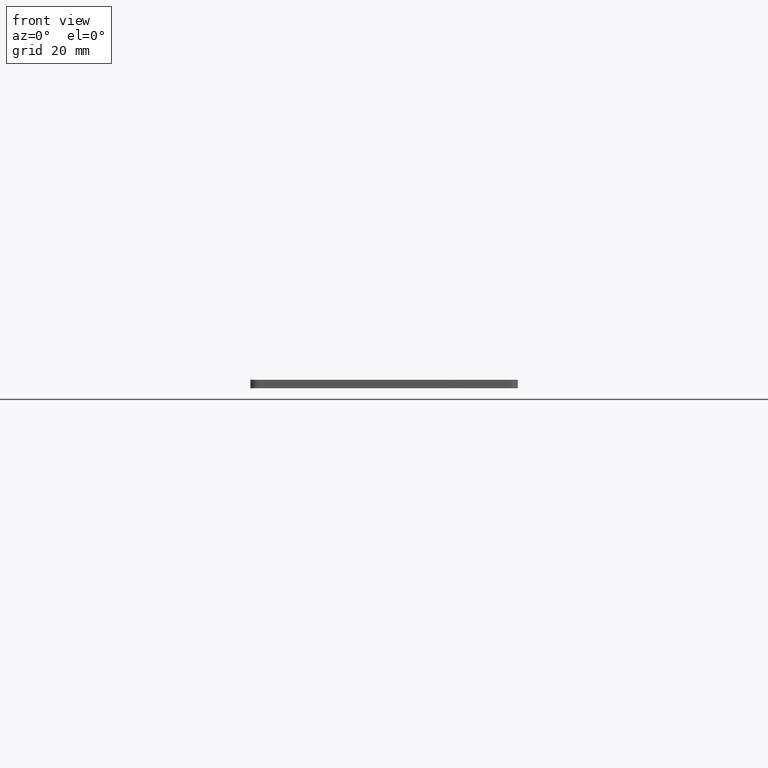
[diagram: clean part render]
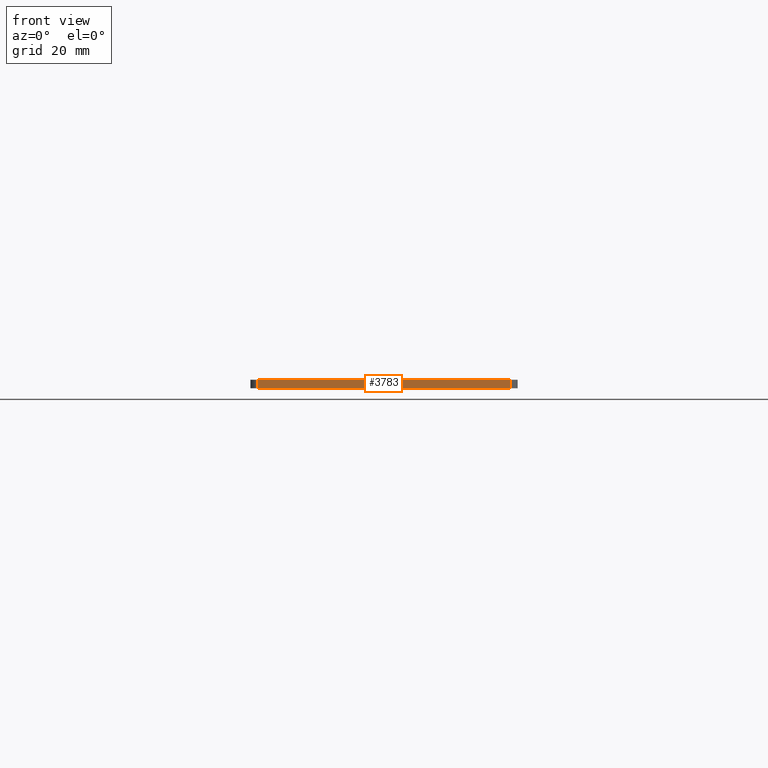
[diagram: same view with one face highlighted and labeled with its STEP entity id]
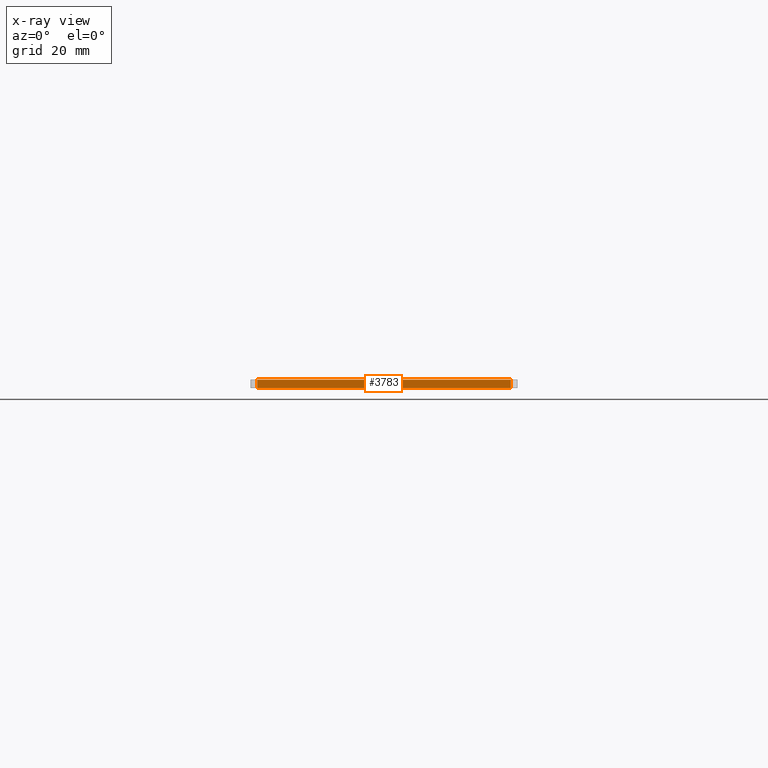
[diagram: x-ray of the same camera — body ghosted, the highlighted face saturated]
A machine part, front view. The second image highlights one B-rep face of the part: STEP entity #3783.
The next image is the same camera in x-ray: the body ghosted, the highlighted face saturated — about 0% of this face is hidden behind the body in this view.
In plain terms, the highlighted planar face has unit normal (0, 1, 0).
Its self-contained STEP definition (entity closure, byte-faithful):
#26 = EDGE_CURVE ( 'NONE', #11713, #7811, #5984, .T. ) ;
#292 = ORIENTED_EDGE ( 'NONE', *, *, #26, .F. ) ;
#407 = EDGE_CURVE ( 'NONE', #12937, #7811, #5324, .T. ) ;
#498 = ORIENTED_EDGE ( 'NONE', *, *, #2244, .T. ) ;
#918 = CARTESIAN_POINT ( 'NONE',  ( -22.05000000000000100, -59.25000000000002100, 0.0000000000000000000 ) ) ;
#1192 = DIRECTION ( 'NONE',  ( -0.0000000000000000000, -0.0000000000000000000, 1.000000000000000000 ) ) ;
#1212 = PLANE ( 'NONE',  #13210 ) ;
#2037 = ORIENTED_EDGE ( 'NONE', *, *, #9589, .T. ) ;
#2244 = EDGE_CURVE ( 'NONE', #3380, #12937, #11699, .T. ) ;
#3186 = VECTOR ( 'NONE', #5935, 1000.000000000000000 ) ;
#3215 = VECTOR ( 'NONE', #10115, 1000.000000000000000 ) ;
#3380 = VERTEX_POINT ( 'NONE', #918 ) ;
#3740 = FACE_OUTER_BOUND ( 'NONE', #5173, .T. ) ;
#3783 = ADVANCED_FACE ( 'NONE', ( #3740 ), #1212, .F. ) ;
#5173 = EDGE_LOOP ( 'NONE', ( #498, #9002, #292, #2037 ) ) ;
#5227 = DIRECTION ( 'NONE',  ( 0.0000000000000000000, 1.000000000000000000, 0.0000000000000000000 ) ) ;
#5324 = LINE ( 'NONE', #12620, #6933 ) ;
#5935 = DIRECTION ( 'NONE',  ( -0.0000000000000000000, 0.0000000000000000000, -1.000000000000000000 ) ) ;
#5984 = LINE ( 'NONE', #11200, #3215 ) ;
#6522 = VECTOR ( 'NONE', #8736, 1000.000000000000000 ) ;
#6933 = VECTOR ( 'NONE', #1192, 1000.000000000000000 ) ;
#7081 = CARTESIAN_POINT ( 'NONE',  ( 22.04999999999999400, -59.25000000000002100, 0.0000000000000000000 ) ) ;
#7283 = DIRECTION ( 'NONE',  ( 0.0000000000000000000, -0.0000000000000000000, 1.000000000000000000 ) ) ;
#7811 = VERTEX_POINT ( 'NONE', #12180 ) ;
#8736 = DIRECTION ( 'NONE',  ( 1.000000000000000000, 0.0000000000000000000, 0.0000000000000000000 ) ) ;
#9002 = ORIENTED_EDGE ( 'NONE', *, *, #407, .T. ) ;
#9589 = EDGE_CURVE ( 'NONE', #11713, #3380, #11450, .T. ) ;
#10105 = CARTESIAN_POINT ( 'NONE',  ( -22.05000000000000100, -59.25000000000002100, 1.500000000000000000 ) ) ;
#10115 = DIRECTION ( 'NONE',  ( 1.000000000000000000, 0.0000000000000000000, 0.0000000000000000000 ) ) ;
#10773 = CARTESIAN_POINT ( 'NONE',  ( -22.05000000000000100, -59.25000000000002100, 1.500000000000000000 ) ) ;
#11200 = CARTESIAN_POINT ( 'NONE',  ( -23.25000000000000000, -59.25000000000002100, 1.500000000000000000 ) ) ;
#11412 = CARTESIAN_POINT ( 'NONE',  ( -23.25000000000000000, -59.25000000000002100, 1.500000000000000000 ) ) ;
#11450 = LINE ( 'NONE', #10105, #3186 ) ;
#11699 = LINE ( 'NONE', #12562, #6522 ) ;
#11713 = VERTEX_POINT ( 'NONE', #10773 ) ;
#12180 = CARTESIAN_POINT ( 'NONE',  ( 22.04999999999999400, -59.25000000000002100, 1.500000000000000000 ) ) ;
#12562 = CARTESIAN_POINT ( 'NONE',  ( -23.25000000000000000, -59.25000000000002100, 0.0000000000000000000 ) ) ;
#12620 = CARTESIAN_POINT ( 'NONE',  ( 22.05000000000000400, -59.25000000000002100, 1.500000000000000000 ) ) ;
#12937 = VERTEX_POINT ( 'NONE', #7081 ) ;
#13210 = AXIS2_PLACEMENT_3D ( 'NONE', #11412, #5227, #7283 ) ;